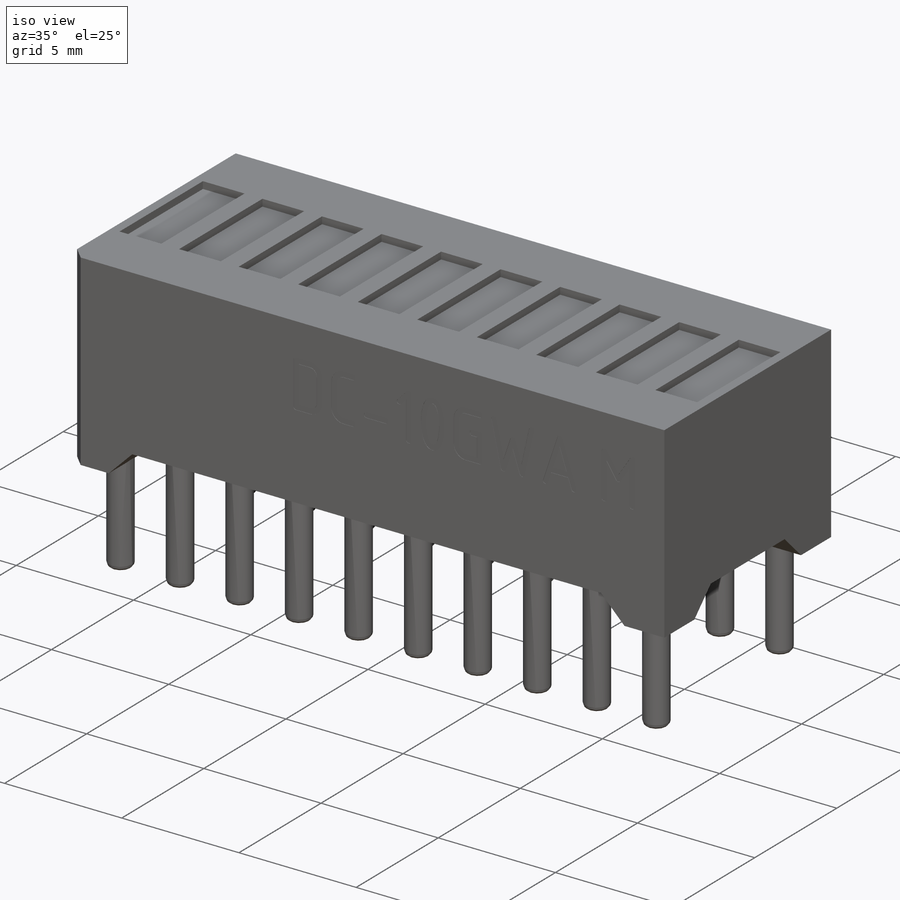
[diagram: iso view]
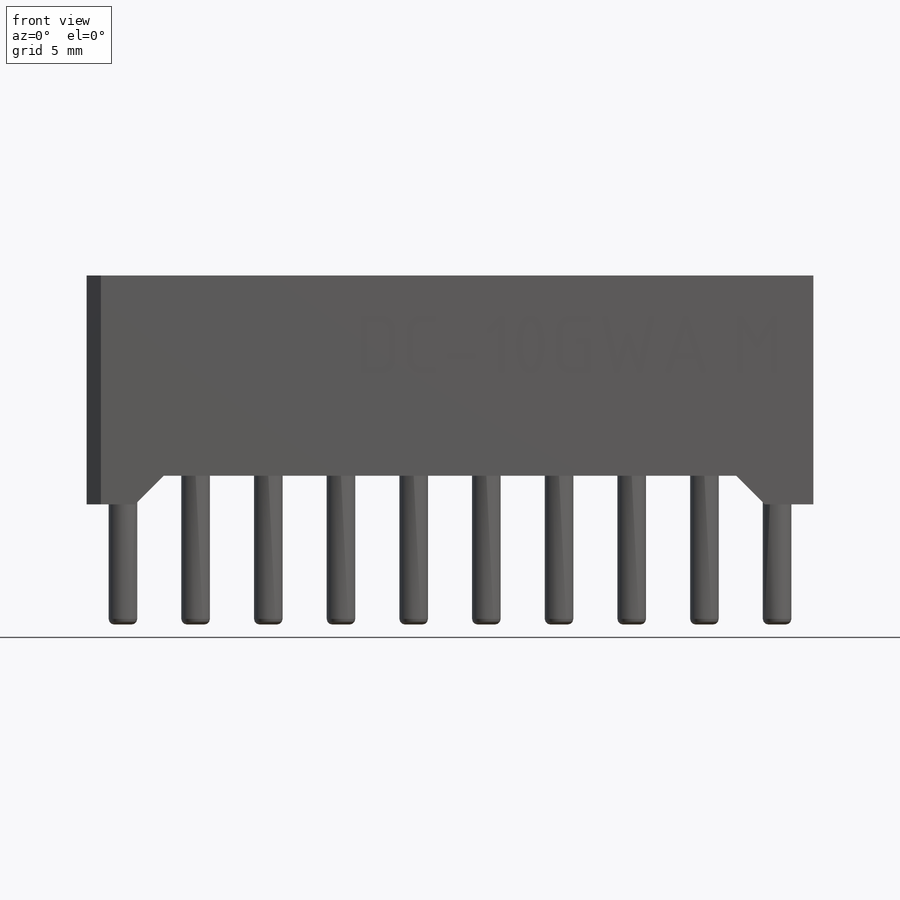
[diagram: front view]
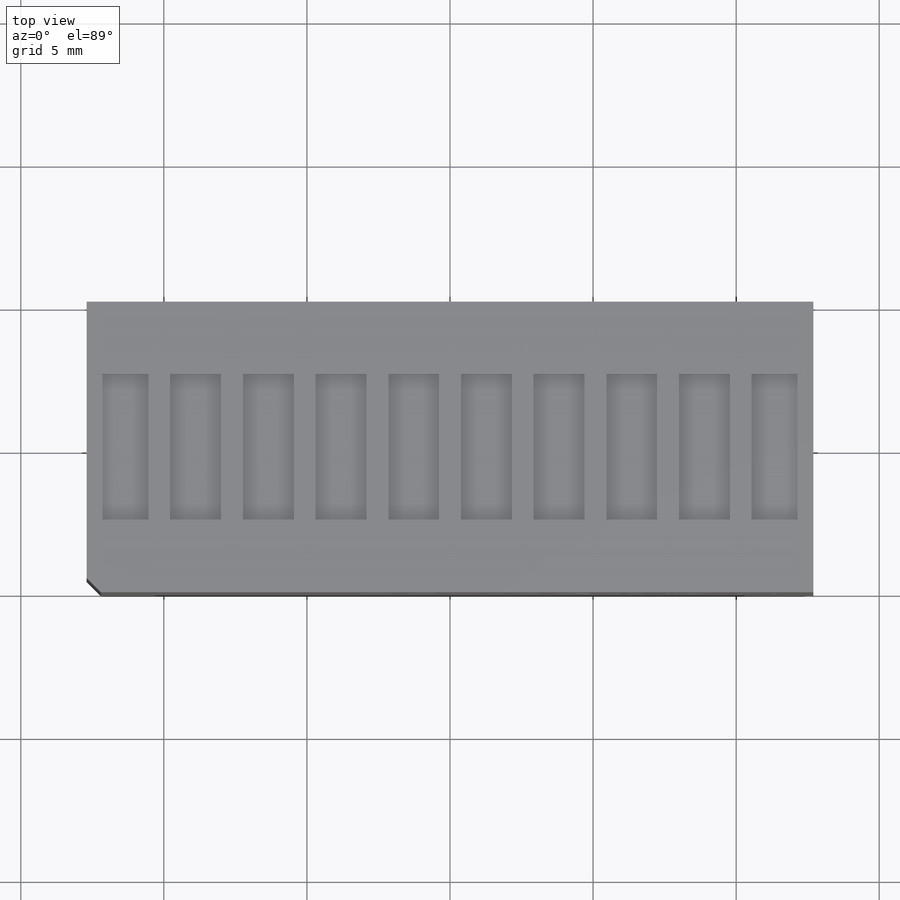
[diagram: top view]
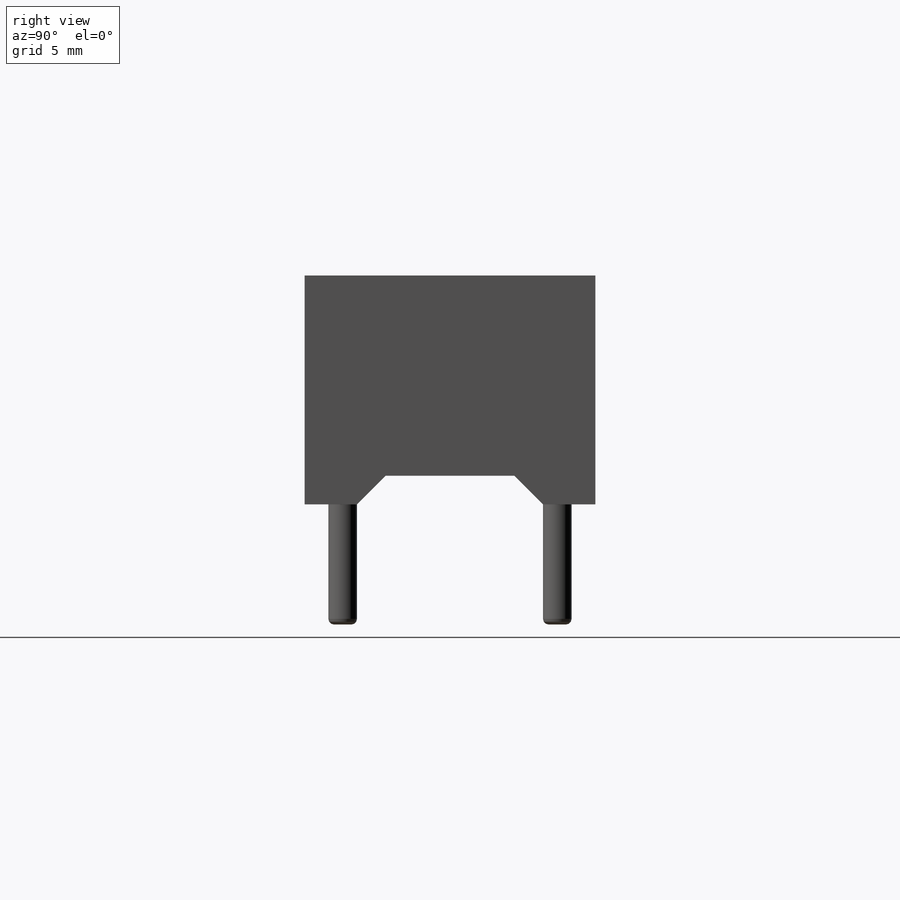
[diagram: right view]
SOLIDWORKS PART (.sldprt)
format: sldprt  version: not decoded by parser v0  size: 716,288 bytes
history: native  units: mm
features: sketch x6, cut_extrude x4, plane x3, chamfer x3, extrude x2, pattern_linear x2, material x1, fillet x1 (+10 scaffold rows collapsed)
feature tree (32):
  scaffold x10  (default folders/planes/origin — collapsed)
  material  "ABS"
  plane  "Спереди"
  plane  "Сверху"
  plane  "Справа"
  sketch  "Эскиз1"  dims[D1=25.4mm D2=10.16mm]
  extrude  "Бобышка-Вытянуть1"  Depth=8mm
  sketch  "Эскиз2"  dims[c1.D1=4.5mm c1.D2=2.0mm c2.D1=2.0mm c2.D2=4.5mm]
  cut_extrude  "Вырез-Вытянуть1"  [1 undecoded]
  chamfer  "Фаска1"  Distance=1mm Angle=45deg
  sketch  "Эскиз3"  dims[c1.D1=2.0mm c1.D2=20.0mm c2.D1=2.0mm c2.D2=20.0mm]
  cut_extrude  "Вырез-Вытянуть2"  [1 undecoded]
  chamfer  "Фаска2"  Distance=1mm Angle=45deg
  sketch  "Эскиз4"  dims[D1=5.08mm D2=1.78mm D3=1.27mm]
  cut_extrude  "Вырез-Вытянуть3"  Depth=0.3mm
  pattern_linear  "Линейный массив1"  Count1=6 Count2=5 Spacing1=2.54mm Spacing2=2.54mm
  sketch  "Эскиз5"  dims[D1=1.0mm D2=1.27mm D3=7.5mm]
  extrude  "Бобышка-Вытянуть2"  Depth=5.2mm
  pattern_linear  "Линейный массив2"  Count1=6 Count2=5 Spacing1=2.54mm Spacing2=2.54mm
  fillet  "Скругление1"  Radius=0.2mm
  chamfer  "Фаска3"  Distance=0.5mm Angle=45deg
  sketch  "Эскиз6"
  cut_extrude  "Вырез-Вытянуть4"  Depth=0.01mm
decode coverage: 15 of 18 modeling features carry decoded parameters
note: 2 parameter values undecoded
note: suppression state not decoded; provenance and decode notes live in map.json
